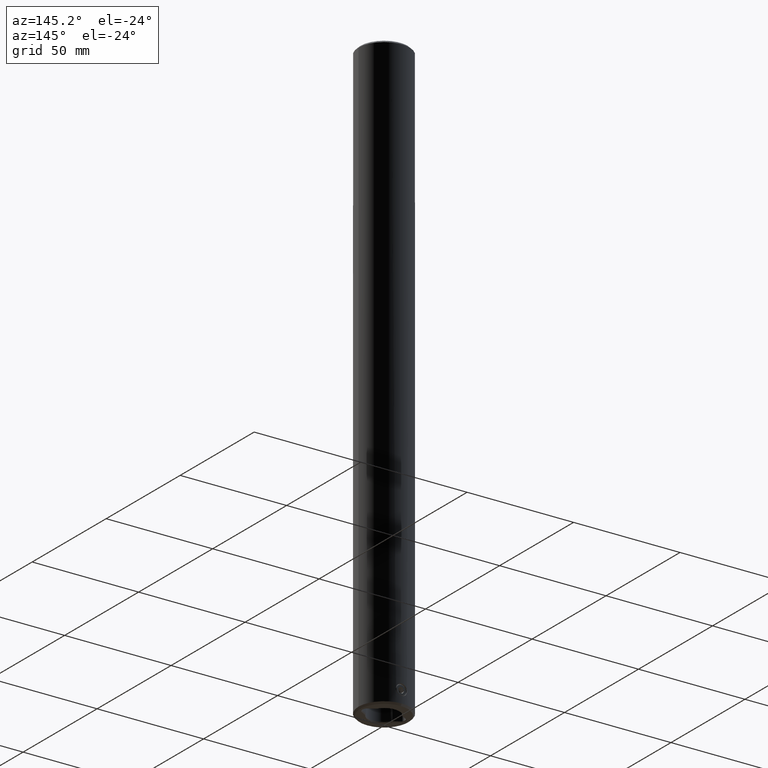
[diagram: clean part render]
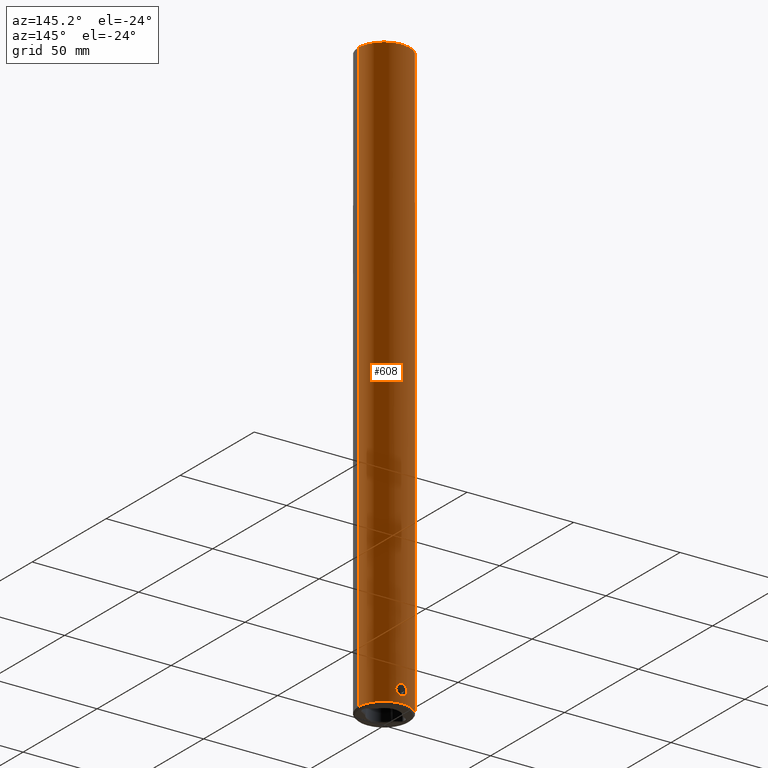
[diagram: same view with one face highlighted and labeled with its STEP entity id]
A machine part, auxiliary view. The second image highlights one B-rep face of the part: STEP entity #608.
In plain terms, the highlighted cylindrical surface (edge-blend (fillet) strip) has radius 12 mm, axis along (-0, -0, 1).
Its self-contained STEP definition (entity closure, byte-faithful):
#412=VERTEX_POINT('NONE',#1117);
#436=EDGE_CURVE('NONE',#946,#704,#1145,.T.);
#486=EDGE_CURVE('NONE',#740,#412,#1200,.T.);
#608=ADVANCED_FACE('NONE',(#1331,#1332),#1333,.T.);
#704=VERTEX_POINT('NONE',#1441);
#740=VERTEX_POINT('NONE',#1483);
#818=EDGE_CURVE('NONE',#850,#946,#1569,.T.);
#850=VERTEX_POINT('NONE',#1604);
#862=EDGE_CURVE('NONE',#412,#850,#1616,.T.);
#870=VERTEX_POINT('NONE',#1627);
#898=EDGE_CURVE('NONE',#1020,#870,#1661,.T.);
#946=VERTEX_POINT('NONE',#1712);
#974=EDGE_CURVE('NONE',#870,#1020,#1742,.T.);
#1020=VERTEX_POINT('NONE',#1793);
#1030=EDGE_CURVE('NONE',#740,#704,#1803,.T.);
#1117=CARTESIAN_POINT('',(-4.18978003333126E-014,12.0,0.75000000000002));
#1145=CIRCLE('',#1926,12.0);
#1200=CIRCLE('',#2003,12.0);
#1331=FACE_OUTER_BOUND('',#2210,.T.);
#1332=FACE_BOUND('',#2211,.T.);
#1333=CYLINDRICAL_SURFACE('',#2212,12.0);
#1441=CARTESIAN_POINT('',(12.0,0.0,279.0));
#1483=CARTESIAN_POINT('',(12.0,0.0,0.75000000000002));
#1569=LINE('',#2602,#2603);
#1604=CARTESIAN_POINT('',(-12.0,1.46952762458685E-015,0.75000000000002));
#1616=CIRCLE('',#2676,12.0);
#1627=CARTESIAN_POINT('',(7.17694684945679E-016,12.0,9.15000000000001));
#1661=B_SPLINE_CURVE_WITH_KNOTS('',3,(#2733,#2734,#2735,#2736,#2737,#2738,#2739,#2740,#2741,#2742,#2743,#2744,#2745,#2746,#2747,#2748,#2749,#2750,#2751,#2752,#2753,#2754,#2755,#2756,#2757,#2758,#2759,#2760),.UNSPECIFIED.,.F.,.F.,(4,2,2,2,2,2,2,2,2,2,2,2,2,4),(0.00815301336631037,0.00917187239788831,0.00968130191367728,0.0101907314294663,0.0107001609452552,0.0112095904610442,0.0122284494926221,0.0127378790084111,0.0132473085242001,0.0137567380399891,0.014266167555778,0.015285026587356,0.0157944561031449,0.0163038856189339),.UNSPECIFIED.);
#1712=CARTESIAN_POINT('',(-12.0,1.46952762458685E-015,279.0));
#1742=B_SPLINE_CURVE_WITH_KNOTS('',3,(#2883,#2884,#2885,#2886,#2887,#2888,#2889,#2890,#2891,#2892,#2893,#2894,#2895,#2896,#2897,#2898,#2899,#2900,#2901,#2902,#2903,#2904,#2905,#2906,#2907,#2908,#2909,#2910,#2911,#2912,#2913,#2914),.UNSPECIFIED.,.F.,.F.,(4,2,2,2,2,2,2,2,2,2,2,2,2,2,2,4),(1.2631662726987E-018,0.0005095633353944,0.0010191266707888,0.0015286900061832,0.00203825334157759,0.00305738001236639,0.00356694334776079,0.00407650668315518,0.00458607001854958,0.00509563335394398,0.00560519668933837,0.00611476002473277,0.00662432336012717,0.00713388669552157,0.00764345003091597,0.00815301336631037),.UNSPECIFIED.);
#1793=CARTESIAN_POINT('',(3.1839832580944E-016,12.0,3.95000000000002));
#1803=LINE('',#3008,#3009);
#1926=AXIS2_PLACEMENT_3D('',#3155,#3156,#3157);
#2003=AXIS2_PLACEMENT_3D('',#3219,#3220,#3221);
#2210=EDGE_LOOP('',(#3342,#3343,#3344,#3345,#3346));
#2211=EDGE_LOOP('',(#3347,#3348));
#2212=AXIS2_PLACEMENT_3D('',#3349,#3350,#3351);
#2602=CARTESIAN_POINT('',(-12.0,1.46952762458685E-015,1.38777878078145E-014));
#2603=VECTOR('',#3658,1000.0);
#2676=AXIS2_PLACEMENT_3D('',#3701,#3702,#3703);
#2733=CARTESIAN_POINT('',(3.1839832580944E-016,12.0,3.95000000000002));
#2734=CARTESIAN_POINT('',(0.339856709545699,12.0,3.95000000000002));
#2735=CARTESIAN_POINT('',(0.682919321127973,11.98466913169,4.01850511190493));
#2736=CARTESIAN_POINT('',(1.15247753032326,11.9455625146292,4.21322726094186));
#2737=CARTESIAN_POINT('',(1.30438470563902,11.9297467229886,4.29444988370369));
#2738=CARTESIAN_POINT('',(1.58710026845435,11.8954356403133,4.4835928461938));
#2739=CARTESIAN_POINT('',(1.71762656121125,11.8770568182236,4.59079655377354));
#2740=CARTESIAN_POINT('',(1.95741416303898,11.8399007369752,4.83033464249045));
#2741=CARTESIAN_POINT('',(2.06690004379563,11.8210435234476,4.96363824909105));
#2742=CARTESIAN_POINT('',(2.25504025698657,11.7865999853077,5.24485141261265));
#2743=CARTESIAN_POINT('',(2.3350918706675,11.7708042629968,5.39390062661591));
#2744=CARTESIAN_POINT('',(2.5319854244246,11.7306009214989,5.86741005509357));
#2745=CARTESIAN_POINT('',(2.59984789529229,11.7149814744002,6.20564626395104));
#2746=CARTESIAN_POINT('',(2.60007567061856,11.7149309222507,6.72045131446857));
#2747=CARTESIAN_POINT('',(2.58332745016591,11.7186844988229,6.8895676707083));
#2748=CARTESIAN_POINT('',(2.51713712871478,11.7330800633499,7.22298409566384));
#2749=CARTESIAN_POINT('',(2.46682701875061,11.7438995177001,7.38882894960955));
#2750=CARTESIAN_POINT('',(2.33667775665241,11.770486331662,7.70273874260691));
#2751=CARTESIAN_POINT('',(2.25694057350273,11.7862400244308,7.8519993160198));
#2752=CARTESIAN_POINT('',(2.06789250774226,11.8208737089202,8.13518249664268));
#2753=CARTESIAN_POINT('',(1.9589683926552,11.8396379769118,8.2678364967316));
#2754=CARTESIAN_POINT('',(1.60095102647706,11.8951794505941,8.6263028157094));
#2755=CARTESIAN_POINT('',(1.31191726195793,11.9321978801839,8.82015621703743));
#2756=CARTESIAN_POINT('',(0.842845405802611,11.9713921458801,9.01541997637556));
#2757=CARTESIAN_POINT('',(0.67766825917356,11.9820256928078,9.06595191740705));
#2758=CARTESIAN_POINT('',(0.342269454325665,11.9962921602148,9.13304083220361));
#2759=CARTESIAN_POINT('',(0.172293168138796,12.0,9.15));
#2760=CARTESIAN_POINT('',(7.17694684945679E-016,12.0,9.15000000000001));
#2883=CARTESIAN_POINT('',(7.17694684945679E-016,12.0,9.15000000000001));
#2884=CARTESIAN_POINT('',(-0.17233842700791,12.0,9.15000000000001));
#2885=CARTESIAN_POINT('',(-0.341696294577312,11.9962919488846,9.13303545234272));
#2886=CARTESIAN_POINT('',(-0.674725182429014,11.9821752119053,9.06665937980954));
#2887=CARTESIAN_POINT('',(-0.840156215996109,11.9715939598477,9.01640662897026));
#2888=CARTESIAN_POINT('',(-1.15481279247959,11.9453477061601,8.88568652456421));
#2889=CARTESIAN_POINT('',(-1.30396610751773,11.9297897508263,8.80576904717413));
#2890=CARTESIAN_POINT('',(-1.58622842833333,11.8955491878947,8.61705127582529));
#2891=CARTESIAN_POINT('',(-1.71945684109214,11.8767880542188,8.50756201524515));
#2892=CARTESIAN_POINT('',(-2.07798907556962,11.8211871931149,8.1488386064422));
#2893=CARTESIAN_POINT('',(-2.2714920624051,11.7837971469977,7.85955424545938));
#2894=CARTESIAN_POINT('',(-2.46619517204943,11.744031216799,7.39055547181764));
#2895=CARTESIAN_POINT('',(-2.5163805768178,11.7332434605284,7.22613189906438));
#2896=CARTESIAN_POINT('',(-2.58332339494159,11.7186865112335,6.89024372068522));
#2897=CARTESIAN_POINT('',(-2.59993168315011,11.714962878636,6.72118862608883));
#2898=CARTESIAN_POINT('',(-2.60006790024582,11.7149326467965,6.3808928834695));
#2899=CARTESIAN_POINT('',(-2.58302528882655,11.7187517740757,6.20800811090655));
#2900=CARTESIAN_POINT('',(-2.51638325157547,11.7332424383165,5.87413505334747));
#2901=CARTESIAN_POINT('',(-2.46709987772604,11.7438440749876,5.71180623921189));
#2902=CARTESIAN_POINT('',(-2.33630243146258,11.7705627058794,5.39637894608239));
#2903=CARTESIAN_POINT('',(-2.25510073836419,11.786587921286,5.24496714944213));
#2904=CARTESIAN_POINT('',(-2.06708030885565,11.8210115118426,4.96388238836236));
#2905=CARTESIAN_POINT('',(-1.95896456426943,11.8396529579086,4.83197829892617));
#2906=CARTESIAN_POINT('',(-1.7175180012135,11.877081133144,4.59059380297715));
#2907=CARTESIAN_POINT('',(-1.58676560279762,11.8954711231041,4.48340932257361));
#2908=CARTESIAN_POINT('',(-1.30557528749993,11.9296073484207,4.2952061568922));
#2909=CARTESIAN_POINT('',(-1.15327773180376,11.9454928022003,4.21357688272506));
#2910=CARTESIAN_POINT('',(-0.839102161744545,11.9716646869284,4.08325516687137));
#2911=CARTESIAN_POINT('',(-0.676991411930068,11.9820570490694,4.03390016802126));
#2912=CARTESIAN_POINT('',(-0.34257878503949,11.9962764337532,3.96703358280612));
#2913=CARTESIAN_POINT('',(-0.16997299244044,12.0,3.95000000000002));
#2914=CARTESIAN_POINT('',(3.1839832580944E-016,12.0,3.95000000000002));
#3008=CARTESIAN_POINT('',(12.0,0.0,1.38777878078145E-014));
#3009=VECTOR('',#3917,1000.0);
#3155=CARTESIAN_POINT('',(0.0,0.0,279.0));
#3156=DIRECTION('',(0.0,0.0,-1.0));
#3157=DIRECTION('',(1.0,0.0,0.0));
#3219=CARTESIAN_POINT('',(0.0,0.0,0.75000000000002));
#3220=DIRECTION('',(0.0,0.0,1.0));
#3221=DIRECTION('',(3.49148336110938E-015,-1.0,-0.0));
#3342=ORIENTED_EDGE('',*,*,#486,.T.);
#3343=ORIENTED_EDGE('',*,*,#862,.T.);
#3344=ORIENTED_EDGE('',*,*,#818,.T.);
#3345=ORIENTED_EDGE('',*,*,#436,.T.);
#3346=ORIENTED_EDGE('',*,*,#1030,.F.);
#3347=ORIENTED_EDGE('',*,*,#974,.T.);
#3348=ORIENTED_EDGE('',*,*,#898,.T.);
#3349=CARTESIAN_POINT('',(0.0,0.0,1.38777878078145E-014));
#3350=DIRECTION('',(-0.0,-0.0,1.0));
#3351=DIRECTION('',(1.0,0.0,0.0));
#3658=DIRECTION('',(0.0,0.0,1.0));
#3701=CARTESIAN_POINT('',(0.0,0.0,0.75000000000002));
#3702=DIRECTION('',(0.0,0.0,1.0));
#3703=DIRECTION('',(3.49148336110938E-015,-1.0,-0.0));
#3917=DIRECTION('',(0.0,0.0,1.0));